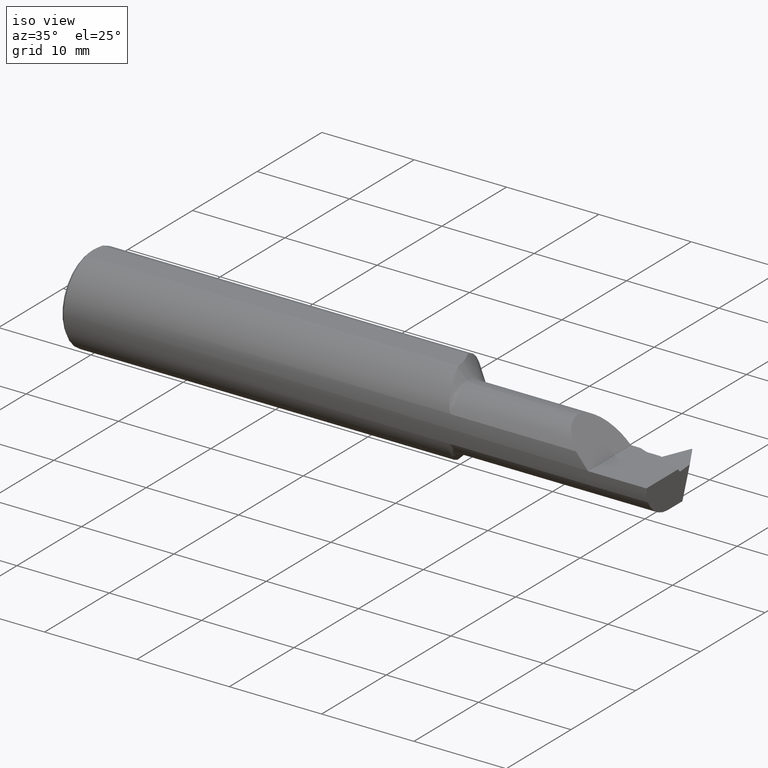
[diagram: clean part render]
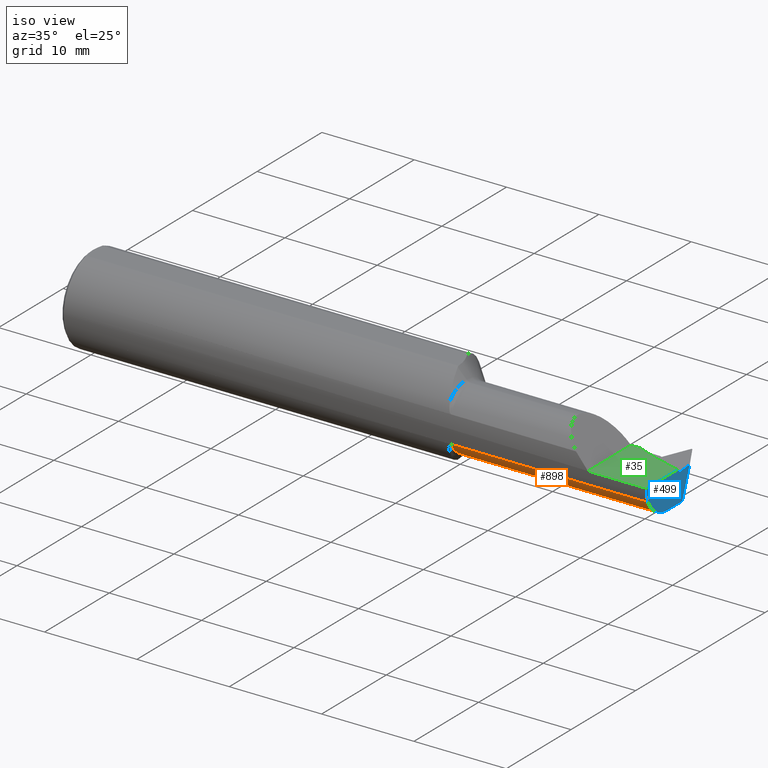
[diagram: same view with three faces highlighted in distinct colors, each labeled with its STEP entity id]
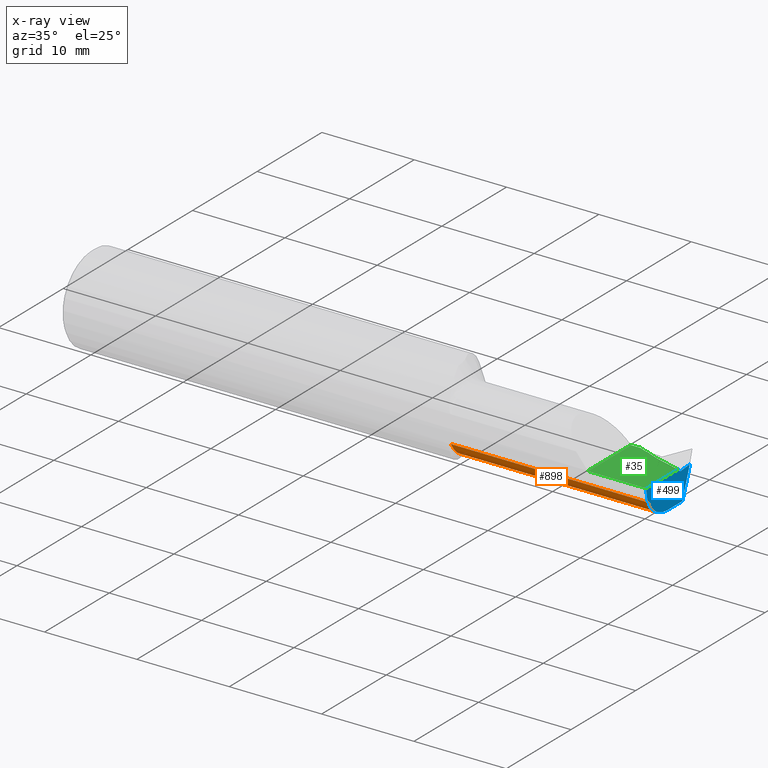
[diagram: x-ray of the same camera — body ghosted, the three highlighted faces saturated]
A machine part, iso view with three faces highlighted in distinct colors.
The next image is the same camera in x-ray (body ghosted, the three faces saturated) — at least one of them is partly hidden behind the body in this view.
Their STEP definitions:

[orange] entity #898 — the highlighted cylindrical surface (partial cylindrical patch) has radius 3.3782 mm, axis along (-1, -0, -0).
#22 = CARTESIAN_POINT ( 'NONE',  ( 1.660355339059327306, -0.05834999999999981868, 0.000000000000000000 ) ) ;
#49 = EDGE_CURVE ( 'NONE', #414, #195, #397, .T. ) ;
#65 = AXIS2_PLACEMENT_3D ( 'NONE', #713, #785, #609 ) ;
#66 = CARTESIAN_POINT ( 'NONE',  ( 1.650000000000000133, -0.05834999999999980480, -0.1330000000000000071 ) ) ;
#92 = DIRECTION ( 'NONE',  ( 0.000000000000000000, 0.000000000000000000, 1.000000000000000000 ) ) ;
#118 = CARTESIAN_POINT ( 'NONE',  ( 2.500000000000000000, -0.05834999999999983950, -0.1329999999999999793 ) ) ;
#139 = ORIENTED_EDGE ( 'NONE', *, *, #302, .T. ) ;
#143 = VERTEX_POINT ( 'NONE', #687 ) ;
#195 = VERTEX_POINT ( 'NONE', #350 ) ;
#200 = VECTOR ( 'NONE', #731, 39.37007874015748143 ) ;
#212 = LINE ( 'NONE', #118, #341 ) ;
#240 = EDGE_LOOP ( 'NONE', ( #300, #1012, #726, #139, #562 ) ) ;
#261 = CYLINDRICAL_SURFACE ( 'NONE', #1042, 0.1330000000000000071 ) ;
#263 = EDGE_CURVE ( 'NONE', #928, #414, #212, .T. ) ;
#299 = DIRECTION ( 'NONE',  ( -1.000000000000000000, -0.000000000000000000, -0.000000000000000000 ) ) ;
#300 = ORIENTED_EDGE ( 'NONE', *, *, #49, .F. ) ;
#302 = EDGE_CURVE ( 'NONE', #143, #593, #556, .T. ) ;
#332 = DIRECTION ( 'NONE',  ( 1.000000000000000000, 0.000000000000000000, 0.000000000000000000 ) ) ;
#337 = DIRECTION ( 'NONE',  ( -1.000000000000000000, -0.000000000000000000, -0.000000000000000000 ) ) ;
#341 = VECTOR ( 'NONE', #956, 39.37007874015748143 ) ;
#350 = CARTESIAN_POINT ( 'NONE',  ( 1.660355339059327306, -0.05834999999999980480, -0.1330000000000000071 ) ) ;
#397 = LINE ( 'NONE', #66, #200 ) ;
#414 = VERTEX_POINT ( 'NONE', #909 ) ;
#509 = CARTESIAN_POINT ( 'NONE',  ( 1.650000000000000133, -0.05834999999999981868, 0.000000000000000000 ) ) ;
#556 = LINE ( 'NONE', #629, #744 ) ;
#562 = ORIENTED_EDGE ( 'NONE', *, *, #962, .T. ) ;
#593 = VERTEX_POINT ( 'NONE', #765 ) ;
#594 = FACE_OUTER_BOUND ( 'NONE', #240, .T. ) ;
#609 = DIRECTION ( 'NONE',  ( 0.000000000000000000, 0.000000000000000000, 1.000000000000000000 ) ) ;
#629 = CARTESIAN_POINT ( 'NONE',  ( 2.015000000000000124, -0.1783697086546703892, -0.05730854678359931925 ) ) ;
#656 = CIRCLE ( 'NONE', #903, 0.1330000000000000071 ) ;
#687 = CARTESIAN_POINT ( 'NONE',  ( 2.500000000000000000, -0.1783697086546704169, -0.05730854678359924986 ) ) ;
#713 = CARTESIAN_POINT ( 'NONE',  ( 2.500000000000000000, -0.05834999999999981868, 0.000000000000000000 ) ) ;
#726 = ORIENTED_EDGE ( 'NONE', *, *, #1007, .F. ) ;
#731 = DIRECTION ( 'NONE',  ( -1.000000000000000000, -0.000000000000000000, -0.000000000000000000 ) ) ;
#744 = VECTOR ( 'NONE', #299, 39.37007874015748143 ) ;
#765 = CARTESIAN_POINT ( 'NONE',  ( 1.660355339059327306, -0.1783697086546703892, -0.05730854678359931925 ) ) ;
#785 = DIRECTION ( 'NONE',  ( 1.000000000000000000, -0.000000000000000000, -0.000000000000000000 ) ) ;
#795 = CIRCLE ( 'NONE', #65, 0.1329999999999999793 ) ;
#898 = ADVANCED_FACE ( 'NONE', ( #594 ), #261, .T. ) ;
#903 = AXIS2_PLACEMENT_3D ( 'NONE', #22, #332, #1014 ) ;
#909 = CARTESIAN_POINT ( 'NONE',  ( 2.398797270268487658, -0.05834999999999983950, -0.1329999999999999793 ) ) ;
#928 = VERTEX_POINT ( 'NONE', #929 ) ;
#929 = CARTESIAN_POINT ( 'NONE',  ( 2.500000000000000000, -0.05834999999999983950, -0.1329999999999999793 ) ) ;
#956 = DIRECTION ( 'NONE',  ( -1.000000000000000000, -0.000000000000000000, -0.000000000000000000 ) ) ;
#962 = EDGE_CURVE ( 'NONE', #593, #195, #656, .T. ) ;
#1007 = EDGE_CURVE ( 'NONE', #143, #928, #795, .T. ) ;
#1012 = ORIENTED_EDGE ( 'NONE', *, *, #263, .F. ) ;
#1014 = DIRECTION ( 'NONE',  ( 0.000000000000000000, 1.797268416884383603E-15, 1.000000000000000000 ) ) ;
#1042 = AXIS2_PLACEMENT_3D ( 'NONE', #509, #337, #92 ) ;

[blue] entity #499 — the highlighted planar face has unit normal (1, 0, 0).
#16 = DIRECTION ( 'NONE',  ( -0.000000000000000000, 1.000000000000000000, -8.972136187338153631E-17 ) ) ;
#38 = EDGE_CURVE ( 'NONE', #111, #871, #1010, .T. ) ;
#44 = CIRCLE ( 'NONE', #269, 0.1873499999999999888 ) ;
#65 = AXIS2_PLACEMENT_3D ( 'NONE', #713, #785, #609 ) ;
#83 = CARTESIAN_POINT ( 'NONE',  ( 2.500000000000000000, 0.001296269976790497946, -0.01481643363321415684 ) ) ;
#89 = DIRECTION ( 'NONE',  ( 0.000000000000000000, 0.000000000000000000, -1.000000000000000000 ) ) ;
#111 = VERTEX_POINT ( 'NONE', #360 ) ;
#140 = CARTESIAN_POINT ( 'NONE',  ( 2.500000000000000000, 0.01716100861735784730, -0.01342844885236288421 ) ) ;
#143 = VERTEX_POINT ( 'NONE', #687 ) ;
#152 = ORIENTED_EDGE ( 'NONE', *, *, #336, .F. ) ;
#160 = ORIENTED_EDGE ( 'NONE', *, *, #38, .T. ) ;
#175 = DIRECTION ( 'NONE',  ( 0.000000000000000000, -0.9961946980917453232, -0.08715574274766091367 ) ) ;
#189 = LINE ( 'NONE', #863, #673 ) ;
#206 = CARTESIAN_POINT ( 'NONE',  ( 2.500000000000000000, 0.003904800381628308319, -6.429183357567480113E-17 ) ) ;
#213 = ORIENTED_EDGE ( 'NONE', *, *, #573, .T. ) ;
#244 = ORIENTED_EDGE ( 'NONE', *, *, #982, .F. ) ;
#269 = AXIS2_PLACEMENT_3D ( 'NONE', #1077, #663, #89 ) ;
#279 = EDGE_CURVE ( 'NONE', #871, #989, #872, .T. ) ;
#311 = DIRECTION ( 'NONE',  ( 1.000000000000000000, 0.000000000000000000, 0.000000000000000000 ) ) ;
#336 = EDGE_CURVE ( 'NONE', #976, #989, #539, .T. ) ;
#360 = CARTESIAN_POINT ( 'NONE',  ( 2.500000000000000000, 0.07668453679770353970, -0.008220814923516509692 ) ) ;
#364 = CARTESIAN_POINT ( 'NONE',  ( 2.500000000000000000, 0.008323043039670234566, -0.004476640089028325123 ) ) ;
#403 = ORIENTED_EDGE ( 'NONE', *, *, #493, .T. ) ;
#421 = CARTESIAN_POINT ( 'NONE',  ( 2.500000000000000000, 0.03178211867366546178, -0.1329999999999999793 ) ) ;
#427 = VECTOR ( 'NONE', #175, 39.37007874015748143 ) ;
#429 = VECTOR ( 'NONE', #16, 39.37007874015748143 ) ;
#444 = CARTESIAN_POINT ( 'NONE',  ( 2.500000000000000000, 0.01716100861735784730, -0.01342844885236288421 ) ) ;
#454 = DIRECTION ( 'NONE',  ( -0.000000000000000000, 1.000000000000000000, -0.000000000000000000 ) ) ;
#493 = EDGE_CURVE ( 'NONE', #976, #143, #44, .T. ) ;
#499 = ADVANCED_FACE ( 'NONE', ( #753 ), #560, .T. ) ;
#503 = ORIENTED_EDGE ( 'NONE', *, *, #279, .T. ) ;
#529 = CARTESIAN_POINT ( 'NONE',  ( 2.500000000000000000, 0.01274177409504420426, -0.008952794699663651698 ) ) ;
#539 = LINE ( 'NONE', #1059, #723 ) ;
#551 = AXIS2_PLACEMENT_3D ( 'NONE', #814, #311, #894 ) ;
#560 = PLANE ( 'NONE',  #551 ) ;
#573 = EDGE_CURVE ( 'NONE', #928, #915, #589, .T. ) ;
#589 = LINE ( 'NONE', #944, #429 ) ;
#604 = CARTESIAN_POINT ( 'NONE',  ( 2.500000000000000000, -0.1873499999999998222, -6.429183357567480113E-17 ) ) ;
#609 = DIRECTION ( 'NONE',  ( 0.000000000000000000, 0.000000000000000000, 1.000000000000000000 ) ) ;
#663 = DIRECTION ( 'NONE',  ( 1.000000000000000000, 0.000000000000000000, 0.000000000000000000 ) ) ;
#673 = VECTOR ( 'NONE', #947, 39.37007874015748854 ) ;
#687 = CARTESIAN_POINT ( 'NONE',  ( 2.500000000000000000, -0.1783697086546704169, -0.05730854678359924986 ) ) ;
#713 = CARTESIAN_POINT ( 'NONE',  ( 2.500000000000000000, -0.05834999999999981868, 0.000000000000000000 ) ) ;
#723 = VECTOR ( 'NONE', #454, 39.37007874015748143 ) ;
#753 = FACE_OUTER_BOUND ( 'NONE', #754, .T. ) ;
#754 = EDGE_LOOP ( 'NONE', ( #244, #160, #503, #152, #403, #779, #213 ) ) ;
#779 = ORIENTED_EDGE ( 'NONE', *, *, #1007, .T. ) ;
#785 = DIRECTION ( 'NONE',  ( 1.000000000000000000, -0.000000000000000000, -0.000000000000000000 ) ) ;
#788 = CARTESIAN_POINT ( 'NONE',  ( 2.500000000000000000, 0.003904800381628308319, -6.429183357567480113E-17 ) ) ;
#795 = CIRCLE ( 'NONE', #65, 0.1329999999999999793 ) ;
#814 = CARTESIAN_POINT ( 'NONE',  ( 2.500000000000000000, 0.000000000000000000, 0.000000000000000000 ) ) ;
#863 = CARTESIAN_POINT ( 'NONE',  ( 2.500000000000000000, 0.07051185957978467478, -0.02537404775976258645 ) ) ;
#871 = VERTEX_POINT ( 'NONE', #140 ) ;
#872 = B_SPLINE_CURVE_WITH_KNOTS ( 'NONE', 3,
 ( #444, #529, #364, #788 ),
 .UNSPECIFIED., .F., .F.,
 ( 4, 4 ),
 ( 0.01149411510696867443, 0.01197339233655110059 ),
 .UNSPECIFIED. ) ;
#894 = DIRECTION ( 'NONE',  ( 0.000000000000000000, 0.000000000000000000, -1.000000000000000000 ) ) ;
#915 = VERTEX_POINT ( 'NONE', #421 ) ;
#928 = VERTEX_POINT ( 'NONE', #929 ) ;
#929 = CARTESIAN_POINT ( 'NONE',  ( 2.500000000000000000, -0.05834999999999983950, -0.1329999999999999793 ) ) ;
#944 = CARTESIAN_POINT ( 'NONE',  ( 2.500000000000000000, 0.1319508336464760567, -0.1329999999999999793 ) ) ;
#947 = DIRECTION ( 'NONE',  ( 0.000000000000000000, -0.3385987137067855701, -0.9409308747597298073 ) ) ;
#976 = VERTEX_POINT ( 'NONE', #604 ) ;
#982 = EDGE_CURVE ( 'NONE', #111, #915, #189, .T. ) ;
#989 = VERTEX_POINT ( 'NONE', #206 ) ;
#1007 = EDGE_CURVE ( 'NONE', #143, #928, #795, .T. ) ;
#1010 = LINE ( 'NONE', #83, #427 ) ;
#1059 = CARTESIAN_POINT ( 'NONE',  ( 2.500000000000000000, 0.2999999999999999889, -6.429183357567480113E-17 ) ) ;
#1077 = CARTESIAN_POINT ( 'NONE',  ( 2.500000000000000000, 0.000000000000000000, 0.000000000000000000 ) ) ;

[green] entity #35 — the highlighted planar face has unit normal (-0, 0, -1).
#1 = VERTEX_POINT ( 'NONE', #487 ) ;
#12 = VECTOR ( 'NONE', #880, 39.37007874015748143 ) ;
#35 = ADVANCED_FACE ( 'NONE', ( #566 ), #163, .F. ) ;
#71 = ORIENTED_EDGE ( 'NONE', *, *, #1053, .F. ) ;
#74 = VERTEX_POINT ( 'NONE', #1078 ) ;
#119 = EDGE_LOOP ( 'NONE', ( #804, #1044, #71, #420, #746 ) ) ;
#163 = PLANE ( 'NONE',  #905 ) ;
#206 = CARTESIAN_POINT ( 'NONE',  ( 2.500000000000000000, 0.003904800381628308319, -6.429183357567480113E-17 ) ) ;
#225 = CARTESIAN_POINT ( 'NONE',  ( 2.250000000000000000, 0.07465000000000017455, -6.429183357567478880E-17 ) ) ;
#238 = CARTESIAN_POINT ( 'NONE',  ( 2.250000000000000000, 0.2999999999999999889, -6.429183357567480113E-17 ) ) ;
#294 = LINE ( 'NONE', #468, #12 ) ;
#296 = DIRECTION ( 'NONE',  ( -0.000000000000000000, 1.000000000000000000, -0.000000000000000000 ) ) ;
#320 = EDGE_CURVE ( 'NONE', #484, #74, #294, .T. ) ;
#333 = CARTESIAN_POINT ( 'NONE',  ( 2.500000000000000000, 0.003904800381628308319, -6.429183357567480113E-17 ) ) ;
#336 = EDGE_CURVE ( 'NONE', #976, #989, #539, .T. ) ;
#393 = DIRECTION ( 'NONE',  ( -1.000000000000000000, -0.000000000000000000, -0.000000000000000000 ) ) ;
#420 = ORIENTED_EDGE ( 'NONE', *, *, #812, .F. ) ;
#434 = EDGE_CURVE ( 'NONE', #74, #989, #800, .T. ) ;
#454 = DIRECTION ( 'NONE',  ( -0.000000000000000000, 1.000000000000000000, -0.000000000000000000 ) ) ;
#468 = CARTESIAN_POINT ( 'NONE',  ( 1.650000000000000133, 0.07465000000000018843, -6.429183357567480113E-17 ) ) ;
#484 = VERTEX_POINT ( 'NONE', #225 ) ;
#487 = CARTESIAN_POINT ( 'NONE',  ( 2.250000000000000000, -0.1873499999999999610, -6.429183357567478880E-17 ) ) ;
#491 = CARTESIAN_POINT ( 'NONE',  ( 2.500000000000000000, -0.1873499999999999888, -6.429183357567480113E-17 ) ) ;
#533 = VECTOR ( 'NONE', #393, 39.37007874015748143 ) ;
#534 = LINE ( 'NONE', #709, #1080 ) ;
#539 = LINE ( 'NONE', #1059, #723 ) ;
#566 = FACE_OUTER_BOUND ( 'NONE', #119, .T. ) ;
#604 = CARTESIAN_POINT ( 'NONE',  ( 2.500000000000000000, -0.1873499999999998222, -6.429183357567480113E-17 ) ) ;
#658 = CARTESIAN_POINT ( 'NONE',  ( 2.290749082609245590, 0.07465000000000018843, -1.347024539874834217E-16 ) ) ;
#668 = DIRECTION ( 'NONE',  ( -0.000000000000000000, 0.000000000000000000, -1.000000000000000000 ) ) ;
#709 = CARTESIAN_POINT ( 'NONE',  ( 2.250000000000000000, 0.2999999999999999889, -6.429183357567480113E-17 ) ) ;
#723 = VECTOR ( 'NONE', #454, 39.37007874015748143 ) ;
#746 = ORIENTED_EDGE ( 'NONE', *, *, #336, .T. ) ;
#800 =( BOUNDED_CURVE ( )  B_SPLINE_CURVE ( 3, ( #658, #900, #914, #333 ),
 .UNSPECIFIED., .F., .T. ) 
 B_SPLINE_CURVE_WITH_KNOTS ( ( 4, 4 ),
 ( 5.860282646912140514, 6.057871501021973693 ),
 .UNSPECIFIED. ) 
 CURVE ( )  GEOMETRIC_REPRESENTATION_ITEM ( )  RATIONAL_B_SPLINE_CURVE ( ( 1.000000000000000000, 0.9967491990950059222, 0.9967491990950059222, 1.000000000000000000 ) ) 
 REPRESENTATION_ITEM ( '' )  );
#804 = ORIENTED_EDGE ( 'NONE', *, *, #434, .F. ) ;
#812 = EDGE_CURVE ( 'NONE', #976, #1, #893, .T. ) ;
#880 = DIRECTION ( 'NONE',  ( 1.000000000000000000, 0.000000000000000000, 0.000000000000000000 ) ) ;
#893 = LINE ( 'NONE', #491, #533 ) ;
#900 = CARTESIAN_POINT ( 'NONE',  ( 2.358066826015524864, 0.04416072756990922776, -6.829619984160658046E-17 ) ) ;
#905 = AXIS2_PLACEMENT_3D ( 'NONE', #238, #668, #926 ) ;
#914 = CARTESIAN_POINT ( 'NONE',  ( 2.428044615674395779, 0.02050208482654423264, -6.829619984160658046E-17 ) ) ;
#926 = DIRECTION ( 'NONE',  ( -1.000000000000000000, 0.000000000000000000, 0.000000000000000000 ) ) ;
#976 = VERTEX_POINT ( 'NONE', #604 ) ;
#989 = VERTEX_POINT ( 'NONE', #206 ) ;
#1044 = ORIENTED_EDGE ( 'NONE', *, *, #320, .F. ) ;
#1053 = EDGE_CURVE ( 'NONE', #1, #484, #534, .T. ) ;
#1059 = CARTESIAN_POINT ( 'NONE',  ( 2.500000000000000000, 0.2999999999999999889, -6.429183357567480113E-17 ) ) ;
#1078 = CARTESIAN_POINT ( 'NONE',  ( 2.290749082609245590, 0.07465000000000018843, -1.347024539874834217E-16 ) ) ;
#1080 = VECTOR ( 'NONE', #296, 39.37007874015748143 ) ;